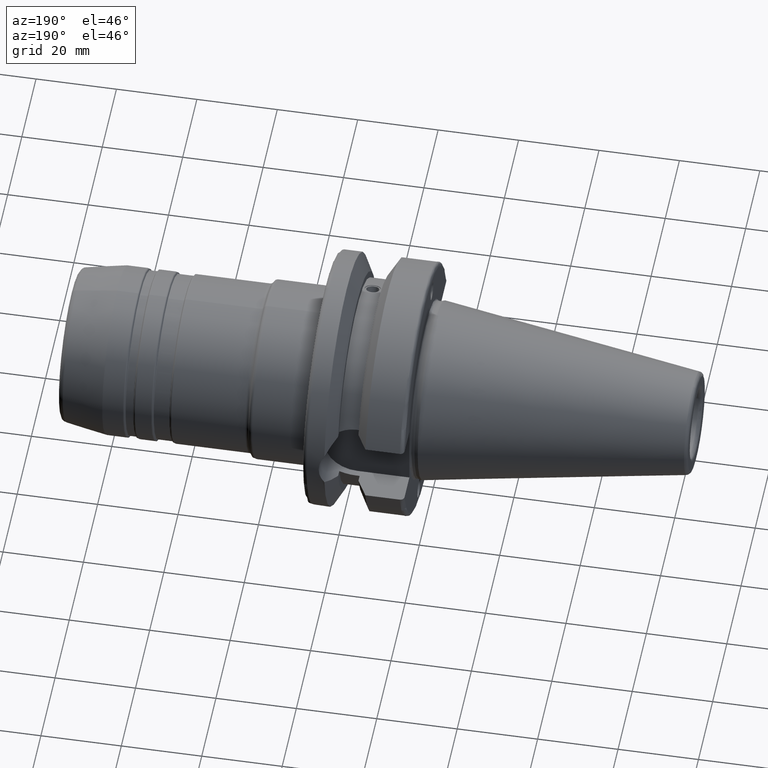
[diagram: clean part render]
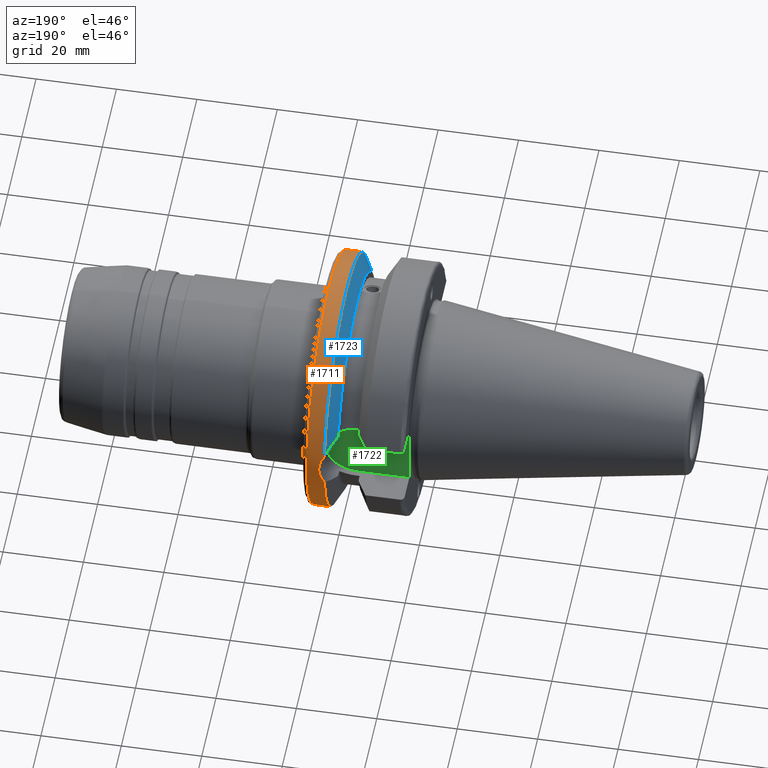
[diagram: same view with three faces highlighted in distinct colors, each labeled with its STEP entity id]
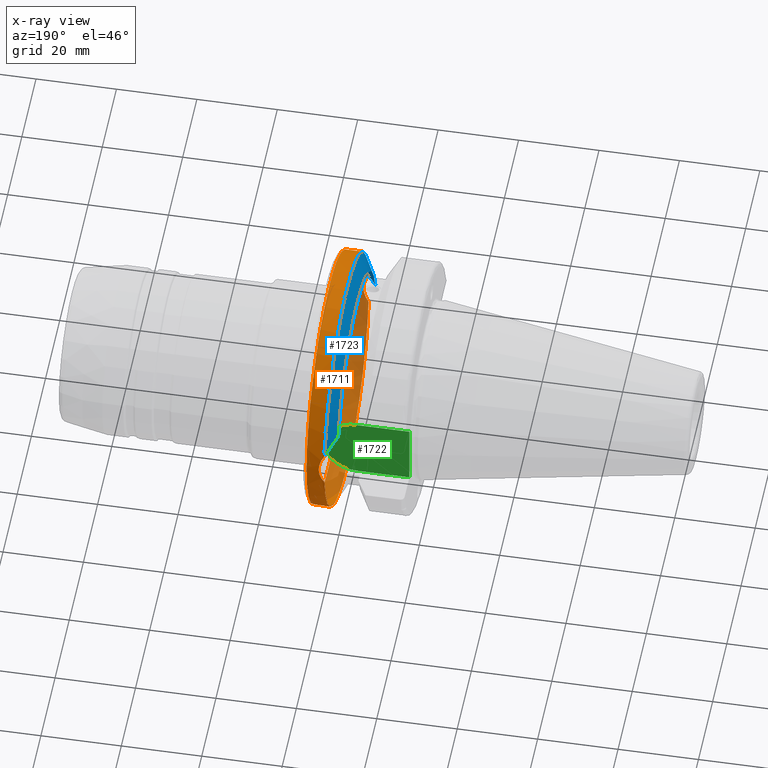
[diagram: x-ray of the same camera — body ghosted, the three highlighted faces saturated]
A machine part, auxiliary view with three faces highlighted in distinct colors.
The next image is the same camera in x-ray (body ghosted, the three faces saturated) — at least one of them is partly hidden behind the body in this view.
Their STEP definitions:

[orange] entity #1711 — the highlighted cylindrical surface (bore or boss wall) has radius 31.5 mm, axis along (1, 0, 0).
#104=B_SPLINE_CURVE_WITH_KNOTS('',3,(#3109,#3110,#3111,#3112,#3113,#3114),
 .UNSPECIFIED.,.F.,.F.,(4,2,4),(1.21877751840372,1.52344857393281,1.67526011710938),
 .UNSPECIFIED.);
#105=B_SPLINE_CURVE_WITH_KNOTS('',3,(#3116,#3117,#3118,#3119,#3120,#3121),
 .UNSPECIFIED.,.F.,.F.,(4,2,4),(0.762294919698051,0.914106462874623,1.21877751840372),
 .UNSPECIFIED.);
#110=B_SPLINE_CURVE_WITH_KNOTS('',3,(#3205,#3206,#3207,#3208,#3209,#3210,
#3211,#3212,#3213,#3214),.UNSPECIFIED.,.F.,.F.,(4,2,2,2,4),(3.19984995650548,
3.35166149968206,3.65633255521115,3.96100361074024,4.11281515391681),
 .UNSPECIFIED.);
#192=FACE_OUTER_BOUND('',#292,.T.);
#292=EDGE_LOOP('',(#1430,#1431,#1432,#1433,#1434,#1435,#1436,#1437,#1438,
#1439));
#379=LINE('',#3201,#449);
#449=VECTOR('',#2443,31.5);
#576=CIRCLE('',#1945,31.5);
#577=CIRCLE('',#1946,31.5);
#578=CIRCLE('',#1947,31.5);
#579=CIRCLE('',#1948,31.5);
#580=CIRCLE('',#1949,31.5);
#743=VERTEX_POINT('',#3101);
#744=VERTEX_POINT('',#3108);
#745=VERTEX_POINT('',#3115);
#763=VERTEX_POINT('',#3196);
#764=VERTEX_POINT('',#3197);
#765=VERTEX_POINT('',#3199);
#766=VERTEX_POINT('',#3202);
#767=VERTEX_POINT('',#3204);
#979=EDGE_CURVE('',#744,#743,#104,.T.);
#980=EDGE_CURVE('',#745,#744,#105,.T.);
#1002=EDGE_CURVE('',#763,#764,#576,.T.);
#1003=EDGE_CURVE('',#765,#763,#577,.T.);
#1004=EDGE_CURVE('',#765,#744,#379,.T.);
#1005=EDGE_CURVE('',#743,#766,#578,.T.);
#1006=EDGE_CURVE('',#766,#767,#110,.T.);
#1007=EDGE_CURVE('',#767,#745,#579,.T.);
#1008=EDGE_CURVE('',#764,#765,#580,.T.);
#1430=ORIENTED_EDGE('',*,*,#1002,.F.);
#1431=ORIENTED_EDGE('',*,*,#1003,.F.);
#1432=ORIENTED_EDGE('',*,*,#1004,.T.);
#1433=ORIENTED_EDGE('',*,*,#979,.T.);
#1434=ORIENTED_EDGE('',*,*,#1005,.T.);
#1435=ORIENTED_EDGE('',*,*,#1006,.T.);
#1436=ORIENTED_EDGE('',*,*,#1007,.T.);
#1437=ORIENTED_EDGE('',*,*,#980,.T.);
#1438=ORIENTED_EDGE('',*,*,#1004,.F.);
#1439=ORIENTED_EDGE('',*,*,#1008,.F.);
#1644=CYLINDRICAL_SURFACE('',#1944,31.5);
#1711=ADVANCED_FACE('',(#192),#1644,.T.);
#1944=AXIS2_PLACEMENT_3D('',#3195,#2437,#2438);
#1945=AXIS2_PLACEMENT_3D('',#3198,#2439,#2440);
#1946=AXIS2_PLACEMENT_3D('',#3200,#2441,#2442);
#1947=AXIS2_PLACEMENT_3D('',#3203,#2444,#2445);
#1948=AXIS2_PLACEMENT_3D('',#3215,#2446,#2447);
#1949=AXIS2_PLACEMENT_3D('',#3216,#2448,#2449);
#2437=DIRECTION('center_axis',(1.,0.,0.));
#2438=DIRECTION('ref_axis',(0.,1.,0.));
#2439=DIRECTION('center_axis',(1.,0.,0.));
#2440=DIRECTION('ref_axis',(0.,0.,-1.));
#2441=DIRECTION('center_axis',(1.,0.,0.));
#2442=DIRECTION('ref_axis',(0.,0.,-1.));
#2443=DIRECTION('',(-1.,0.,0.));
#2444=DIRECTION('center_axis',(1.,0.,0.));
#2445=DIRECTION('ref_axis',(0.,0.,-1.));
#2446=DIRECTION('center_axis',(1.,0.,0.));
#2447=DIRECTION('ref_axis',(0.,0.,-1.));
#2448=DIRECTION('center_axis',(1.,0.,0.));
#2449=DIRECTION('ref_axis',(0.,0.,-1.));
#3101=CARTESIAN_POINT('',(21.6309636926618,-31.1782420264945,-4.4907932637046));
#3108=CARTESIAN_POINT('',(23.,-31.5,-1.51248507442265E-15));
#3109=CARTESIAN_POINT('Ctrl Pts',(23.,-31.5,8.32667268468867E-16));
#3110=CARTESIAN_POINT('Ctrl Pts',(23.,-31.5,-1.01557018509698));
#3111=CARTESIAN_POINT('Ctrl Pts',(22.7961189876535,-31.445974204441,-2.09580170425552));
#3112=CARTESIAN_POINT('Ctrl Pts',(22.1796133812044,-31.2997625705024,-3.58065358198869));
#3113=CARTESIAN_POINT('Ctrl Pts',(21.92482980253,-31.2412125047166,-4.05360796141051));
#3114=CARTESIAN_POINT('Ctrl Pts',(21.6309636926618,-31.1782420264945,-4.4907932637046));
#3115=CARTESIAN_POINT('',(21.6309636926618,-31.1782420264945,4.4907932637046));
#3116=CARTESIAN_POINT('Ctrl Pts',(21.6309636926618,-31.1782420264945,4.4907932637046));
#3117=CARTESIAN_POINT('Ctrl Pts',(21.92482980253,-31.2412125047166,4.05360796141051));
#3118=CARTESIAN_POINT('Ctrl Pts',(22.1796133812044,-31.2997625705024,3.58065358198869));
#3119=CARTESIAN_POINT('Ctrl Pts',(22.7961189876535,-31.445974204441,2.09580170425552));
#3120=CARTESIAN_POINT('Ctrl Pts',(23.,-31.5,1.01557018509698));
#3121=CARTESIAN_POINT('Ctrl Pts',(23.,-31.5,-2.77555756156289E-16));
#3195=CARTESIAN_POINT('Origin',(23.8154818463309,0.,0.));
#3196=CARTESIAN_POINT('',(26.,31.5,0.));
#3197=CARTESIAN_POINT('',(26.,-3.85763741731416E-15,31.5));
#3198=CARTESIAN_POINT('Origin',(26.,0.,0.));
#3199=CARTESIAN_POINT('',(26.,-31.5,-3.85763741731416E-15));
#3200=CARTESIAN_POINT('Origin',(26.,0.,0.));
#3201=CARTESIAN_POINT('',(23.8154818463309,-31.5,-3.85763741731416E-15));
#3202=CARTESIAN_POINT('',(21.6309636926618,31.1782420264945,-4.4907932637046));
#3203=CARTESIAN_POINT('Origin',(21.6309636926618,0.,0.));
#3204=CARTESIAN_POINT('',(21.6309636926618,31.1782420264945,4.4907932637046));
#3205=CARTESIAN_POINT('Ctrl Pts',(21.6309636926618,31.1782420264945,-4.4907932637046));
#3206=CARTESIAN_POINT('Ctrl Pts',(21.92482980253,31.2412125047166,-4.05360796141051));
#3207=CARTESIAN_POINT('Ctrl Pts',(22.1796133812044,31.2997625705024,-3.58065358198869));
#3208=CARTESIAN_POINT('Ctrl Pts',(22.7961189876535,31.445974204441,-2.09580170425552));
#3209=CARTESIAN_POINT('Ctrl Pts',(23.,31.5,-1.01557018509698));
#3210=CARTESIAN_POINT('Ctrl Pts',(23.,31.5,1.01557018509698));
#3211=CARTESIAN_POINT('Ctrl Pts',(22.7961189876535,31.445974204441,2.09580170425552));
#3212=CARTESIAN_POINT('Ctrl Pts',(22.1796133812044,31.2997625705024,3.58065358198869));
#3213=CARTESIAN_POINT('Ctrl Pts',(21.92482980253,31.2412125047166,4.05360796141051));
#3214=CARTESIAN_POINT('Ctrl Pts',(21.6309636926618,31.1782420264945,4.4907932637046));
#3215=CARTESIAN_POINT('Origin',(21.6309636926618,0.,0.));
#3216=CARTESIAN_POINT('Origin',(26.,0.,0.));

[blue] entity #1723 — the highlighted conical surface has half-angle 60.125 deg.
#106=B_SPLINE_CURVE_WITH_KNOTS('',3,(#3123,#3124,#3125,#3126,#3127,#3128),
 .UNSPECIFIED.,.F.,.F.,(4,2,4),(1.46421027899559,1.54570476603972,2.04294020568399),
 .UNSPECIFIED.);
#115=B_SPLINE_CURVE_WITH_KNOTS('',3,(#3284,#3285,#3286,#3287,#3288,#3289),
 .UNSPECIFIED.,.F.,.F.,(4,2,4),(3.12975744792547,3.62699288756974,3.70848737461386),
 .UNSPECIFIED.);
#129=CONICAL_SURFACE('',#1969,29.2970358274569,1.0493792127616);
#204=FACE_OUTER_BOUND('',#305,.T.);
#305=EDGE_LOOP('',(#1502,#1503,#1504,#1505));
#579=CIRCLE('',#1948,31.5);
#589=CIRCLE('',#1970,27.0940716549138);
#745=VERTEX_POINT('',#3115);
#746=VERTEX_POINT('',#3122);
#767=VERTEX_POINT('',#3204);
#780=VERTEX_POINT('',#3282);
#981=EDGE_CURVE('',#746,#745,#106,.T.);
#1007=EDGE_CURVE('',#767,#745,#579,.T.);
#1029=EDGE_CURVE('',#767,#780,#115,.T.);
#1040=EDGE_CURVE('',#780,#746,#589,.T.);
#1502=ORIENTED_EDGE('',*,*,#981,.T.);
#1503=ORIENTED_EDGE('',*,*,#1007,.F.);
#1504=ORIENTED_EDGE('',*,*,#1029,.T.);
#1505=ORIENTED_EDGE('',*,*,#1040,.T.);
#1723=ADVANCED_FACE('',(#204),#129,.T.);
#1948=AXIS2_PLACEMENT_3D('',#3215,#2446,#2447);
#1969=AXIS2_PLACEMENT_3D('',#3321,#2503,#2504);
#1970=AXIS2_PLACEMENT_3D('',#3322,#2505,#2506);
#2446=DIRECTION('center_axis',(1.,0.,0.));
#2447=DIRECTION('ref_axis',(0.,0.,-1.));
#2503=DIRECTION('center_axis',(1.,0.,0.));
#2504=DIRECTION('ref_axis',(0.,1.,0.));
#2505=DIRECTION('center_axis',(1.,0.,0.));
#2506=DIRECTION('ref_axis',(0.,0.,-1.));
#3115=CARTESIAN_POINT('',(21.6309636926618,-31.1782420264945,4.4907932637046));
#3122=CARTESIAN_POINT('',(19.1,-26.201311395455,6.89782574439221));
#3123=CARTESIAN_POINT('Ctrl Pts',(19.1,-26.201311395455,6.89782574439221));
#3124=CARTESIAN_POINT('Ctrl Pts',(19.2210929544554,-26.4384736933511,6.82497151762395));
#3125=CARTESIAN_POINT('Ctrl Pts',(19.3406963650697,-26.6728819297428,6.74867108656039));
#3126=CARTESIAN_POINT('Ctrl Pts',(20.1784155384866,-28.3157123387484,6.18231368976925));
#3127=CARTESIAN_POINT('Ctrl Pts',(20.9728756148303,-29.8797957262939,5.46983244373115));
#3128=CARTESIAN_POINT('Ctrl Pts',(21.6309636926618,-31.1782420264945,4.4907932637046));
#3204=CARTESIAN_POINT('',(21.6309636926618,31.1782420264945,4.4907932637046));
#3215=CARTESIAN_POINT('Origin',(21.6309636926618,0.,0.));
#3282=CARTESIAN_POINT('',(19.1,26.201311395455,6.89782574439221));
#3284=CARTESIAN_POINT('Ctrl Pts',(21.6309636926618,31.1782420264945,4.4907932637046));
#3285=CARTESIAN_POINT('Ctrl Pts',(20.9728756148303,29.8797957262939,5.46983244373114));
#3286=CARTESIAN_POINT('Ctrl Pts',(20.1784155384866,28.3157123387484,6.18231368976924));
#3287=CARTESIAN_POINT('Ctrl Pts',(19.3406963650697,26.6728819297428,6.74867108656039));
#3288=CARTESIAN_POINT('Ctrl Pts',(19.2210929544554,26.438473693351,6.82497151762395));
#3289=CARTESIAN_POINT('Ctrl Pts',(19.1,26.201311395455,6.89782574439221));
#3321=CARTESIAN_POINT('Origin',(20.3654818463309,0.,0.));
#3322=CARTESIAN_POINT('Origin',(19.1,0.,0.));

[green] entity #1722 — the highlighted planar face has unit normal (0, 1, 0).
#52=PLANE('',#1968);
#203=FACE_OUTER_BOUND('',#304,.T.);
#304=EDGE_LOOP('',(#1498,#1499,#1500,#1501));
#388=LINE('',#3294,#458);
#393=LINE('',#3318,#463);
#394=LINE('',#3320,#464);
#458=VECTOR('',#2492,10.);
#463=VECTOR('',#2499,10.);
#464=VECTOR('',#2502,10.);
#588=CIRCLE('',#1965,8.05);
#776=VERTEX_POINT('',#3269);
#777=VERTEX_POINT('',#3271);
#782=VERTEX_POINT('',#3293);
#787=VERTEX_POINT('',#3316);
#1025=EDGE_CURVE('',#777,#776,#588,.T.);
#1031=EDGE_CURVE('',#782,#777,#388,.T.);
#1038=EDGE_CURVE('',#776,#787,#393,.T.);
#1039=EDGE_CURVE('',#782,#787,#394,.T.);
#1498=ORIENTED_EDGE('',*,*,#1038,.T.);
#1499=ORIENTED_EDGE('',*,*,#1039,.F.);
#1500=ORIENTED_EDGE('',*,*,#1031,.T.);
#1501=ORIENTED_EDGE('',*,*,#1025,.T.);
#1722=ADVANCED_FACE('',(#203),#52,.T.);
#1965=AXIS2_PLACEMENT_3D('',#3272,#2485,#2486);
#1968=AXIS2_PLACEMENT_3D('',#3319,#2500,#2501);
#2485=DIRECTION('center_axis',(0.,1.,0.));
#2486=DIRECTION('ref_axis',(0.,0.,1.));
#2492=DIRECTION('',(1.,0.,8.57315076930623E-17));
#2499=DIRECTION('',(-1.,0.,-8.57315076930623E-17));
#2500=DIRECTION('center_axis',(0.,1.,0.));
#2501=DIRECTION('ref_axis',(0.,0.,1.));
#2502=DIRECTION('',(0.,0.,-1.));
#3269=CARTESIAN_POINT('',(14.95,22.6,-8.05));
#3271=CARTESIAN_POINT('',(14.95,22.6,8.05));
#3272=CARTESIAN_POINT('Origin',(14.95,22.6,0.));
#3293=CARTESIAN_POINT('',(1.99999999999999,22.6,8.05));
#3294=CARTESIAN_POINT('',(1.99999999999999,22.6,8.05));
#3316=CARTESIAN_POINT('',(1.99999999999999,22.6,-8.05));
#3318=CARTESIAN_POINT('',(14.95,22.6,-8.05));
#3319=CARTESIAN_POINT('Origin',(12.5,22.6,0.));
#3320=CARTESIAN_POINT('',(1.99999999999999,22.6,0.));